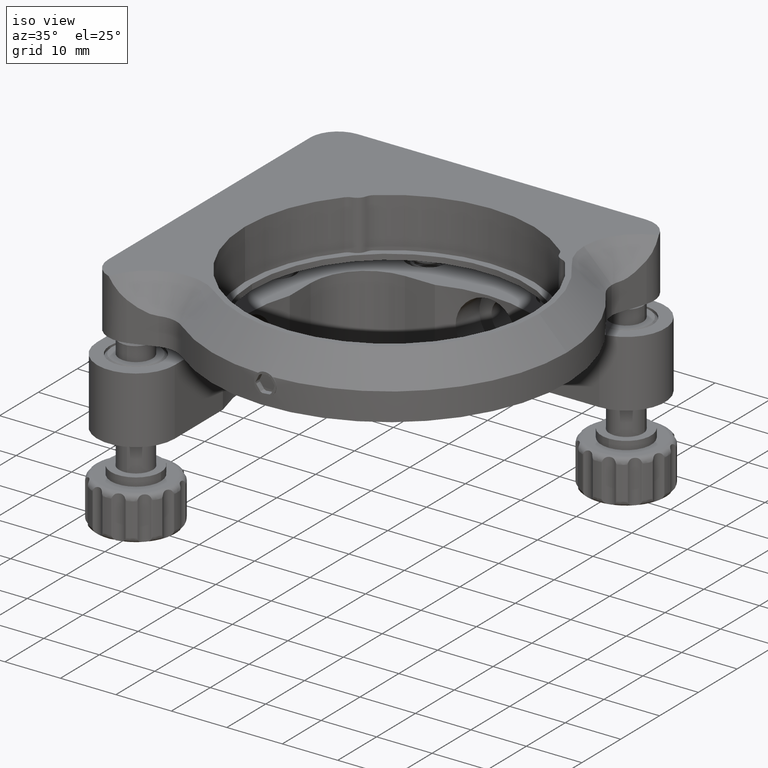
[diagram: clean part render]
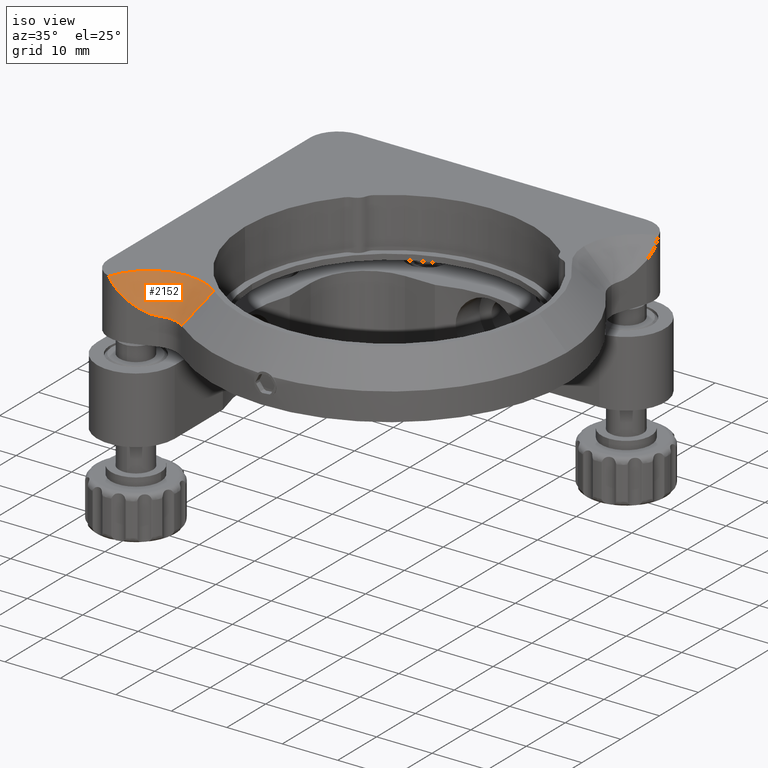
[diagram: same view with one face highlighted and labeled with its STEP entity id]
A machine part, iso view. The second image highlights one B-rep face of the part: STEP entity #2152.
In plain terms, the highlighted conical surface has half-angle 45 deg.
Its self-contained STEP definition (entity closure, byte-faithful):
#636 = CARTESIAN_POINT ( 'NONE',  ( 7.886025639627610495, -59.89193986682194293, 4.999999999999990230 ) ) ;
#926 = EDGE_CURVE ( 'NONE', #32137, #6437, #18439, .T. ) ;
#1435 = VERTEX_POINT ( 'NONE', #11555 ) ;
#1899 = DIRECTION ( 'NONE',  ( -1.000000000000000000, -1.387778780781444689E-15, 1.734723475976805862E-16 ) ) ;
#1918 = CARTESIAN_POINT ( 'NONE',  ( 1.033802242430160057, -56.90088579660176293, 7.475194874146655621 ) ) ;
#2152 = ADVANCED_FACE ( 'NONE', ( #3892 ), #16226, .F. ) ;
#2287 = CARTESIAN_POINT ( 'NONE',  ( 4.596182747521622147, -55.72578785341517005, 5.304773322691723081 ) ) ;
#2783 = EDGE_CURVE ( 'NONE', #6437, #24167, #20857, .T. ) ;
#3295 = CARTESIAN_POINT ( 'NONE',  ( 3.412689686452225590, -56.12564660272109052, 5.836463065857626198 ) ) ;
#3544 = CARTESIAN_POINT ( 'NONE',  ( 11.00953568832658114, -55.98762366860277240, 5.000000000000008882 ) ) ;
#3584 = CARTESIAN_POINT ( 'NONE',  ( 14.13304573702555089, -52.08330747038358766, 10.00000000000000533 ) ) ;
#3892 = FACE_OUTER_BOUND ( 'NONE', #18930, .T. ) ;
#3954 = AXIS2_PLACEMENT_3D ( 'NONE', #636, #12836, #1899 ) ;
#4111 = DIRECTION ( 'NONE',  ( -1.000000000000000000, -6.938893903907217531E-16, 1.734723475976804383E-16 ) ) ;
#4250 = CARTESIAN_POINT ( 'NONE',  ( 7.886025639627610495, -59.89193986682194293, 4.999999999999991118 ) ) ;
#5012 = ORIENTED_EDGE ( 'NONE', *, *, #31501, .F. ) ;
#5852 = CARTESIAN_POINT ( 'NONE',  ( 5.426852551836481631, -55.44513509763186931, 5.063787605655678092 ) ) ;
#6437 = VERTEX_POINT ( 'NONE', #21384 ) ;
#6650 = CARTESIAN_POINT ( 'NONE',  ( 1.312957413941941098, -56.83506886127203472, 7.245905096986090754 ) ) ;
#7374 = DIRECTION ( 'NONE',  ( 1.772866405933790834E-16, 8.922568092179399976E-17, -1.000000000000000000 ) ) ;
#7906 = CARTESIAN_POINT ( 'NONE',  ( 4.191877607223854163, -55.86238768070212757, 5.463035022545933650 ) ) ;
#8202 = EDGE_CURVE ( 'NONE', #1435, #32137, #17869, .T. ) ;
#8558 = CARTESIAN_POINT ( 'NONE',  ( 4.803084303807525046, -55.65588343213264721, 5.234862595525001439 ) ) ;
#8733 = VECTOR ( 'NONE', #23555, 1000.000000000000114 ) ;
#9929 = CARTESIAN_POINT ( 'NONE',  ( 0.2108121162944553151, -57.00376698487036720, 8.200154675296495554 ) ) ;
#10663 = CARTESIAN_POINT ( 'NONE',  ( 3.038979746246685210, -56.25190943789035458, 6.053897754134207609 ) ) ;
#11555 = CARTESIAN_POINT ( 'NONE',  ( 14.13304573702554734, -52.08330747038359476, 10.00000000000000533 ) ) ;
#12836 = DIRECTION ( 'NONE',  ( -1.772866405933790834E-16, -8.922568092179399976E-17, 1.000000000000000000 ) ) ;
#13226 = CARTESIAN_POINT ( 'NONE',  ( 1.951745298620935598, -56.61924594431405922, 6.771757543636923060 ) ) ;
#13345 = CIRCLE ( 'NONE', #30939, 10.00000000000001599 ) ;
#13408 = CARTESIAN_POINT ( 'NONE',  ( 6.285587990873471753, -55.15499999677395238, 4.999999999999986677 ) ) ;
#13657 = ORIENTED_EDGE ( 'NONE', *, *, #17100, .F. ) ;
#15414 = DIRECTION ( 'NONE',  ( -1.772866405933790834E-16, -8.922568092179399976E-17, 1.000000000000000000 ) ) ;
#15623 = CARTESIAN_POINT ( 'NONE',  ( 0.4830141292062823388, -56.98540821434005466, 7.951834639924137527 ) ) ;
#16226 = CONICAL_SURFACE ( 'NONE', #3954, 5.000000000000003553, 0.7853981633974483900 ) ;
#16811 = CARTESIAN_POINT ( 'NONE',  ( -1.603246745564619102, -56.73698985142891615, 10.00000000000000533 ) ) ;
#17100 = EDGE_CURVE ( 'NONE', #20963, #1435, #13345, .T. ) ;
#17869 = LINE ( 'NONE', #3584, #8733 ) ;
#18439 = CIRCLE ( 'NONE', #26043, 5.000000000000003553 ) ;
#18927 = CARTESIAN_POINT ( 'NONE',  ( 1.600437648754137410, -56.73793987004811612, 7.032519631729585718 ) ) ;
#18930 = EDGE_LOOP ( 'NONE', ( #26058, #25918, #35514, #13657, #5012 ) ) ;
#20857 = B_SPLINE_CURVE_WITH_KNOTS ( 'NONE', 3,
 ( #13408, #21668, #5852, #8558, #2287, #7906, #32674, #3295, #10663, #30300, #13226, #18927 ),
 .UNSPECIFIED., .F., .F.,
 ( 4, 2, 2, 2, 2, 4 ),
 ( 8.673617379884034509E-19, 0.001355948262144427742, 0.002033922393216636842, 0.002711896524288845943, 0.004067844786433271950, 0.005423793048577697958 ),
 .UNSPECIFIED. ) ;
#20963 = VERTEX_POINT ( 'NONE', #16811 ) ;
#21384 = CARTESIAN_POINT ( 'NONE',  ( 6.285587990873471753, -55.15499999677395238, 4.999999999999986677 ) ) ;
#21624 = DIRECTION ( 'NONE',  ( -1.000000000000000000, -1.387778780781444689E-15, 1.734723475976805862E-16 ) ) ;
#21668 = CARTESIAN_POINT ( 'NONE',  ( 5.850970818540396579, -55.30184114411363794, 4.999999999999992895 ) ) ;
#23555 = DIRECTION ( 'NONE',  ( -0.4417310273078717264, -0.5521536919314524727, -0.7071067811865467956 ) ) ;
#23714 = CARTESIAN_POINT ( 'NONE',  ( -1.603246745564619102, -56.73698985142891615, 10.00000000000000533 ) ) ;
#23906 = CARTESIAN_POINT ( 'NONE',  ( 7.886025639627610495, -59.89193986682194293, 10.00000000000000533 ) ) ;
#24167 = VERTEX_POINT ( 'NONE', #32630 ) ;
#25918 = ORIENTED_EDGE ( 'NONE', *, *, #926, .F. ) ;
#26043 = AXIS2_PLACEMENT_3D ( 'NONE', #4250, #15414, #21624 ) ;
#26058 = ORIENTED_EDGE ( 'NONE', *, *, #2783, .F. ) ;
#29211 = CARTESIAN_POINT ( 'NONE',  ( -0.5947850415259445800, -56.99446650809979076, 8.960349745966075474 ) ) ;
#30300 = CARTESIAN_POINT ( 'NONE',  ( 2.308454058568644385, -56.49872718226041712, 6.521441532815284603 ) ) ;
#30939 = AXIS2_PLACEMENT_3D ( 'NONE', #23906, #7374, #4111 ) ;
#31501 = EDGE_CURVE ( 'NONE', #24167, #20963, #35797, .T. ) ;
#32137 = VERTEX_POINT ( 'NONE', #3544 ) ;
#32309 = CARTESIAN_POINT ( 'NONE',  ( -1.108156595214071283, -56.90458980354266316, 9.477318523659679528 ) ) ;
#32630 = CARTESIAN_POINT ( 'NONE',  ( 1.600437648754137410, -56.73793987004811612, 7.032519631729585718 ) ) ;
#32674 = CARTESIAN_POINT ( 'NONE',  ( 3.994401168179725126, -55.92910770174071899, 5.551209796058738988 ) ) ;
#35068 = CARTESIAN_POINT ( 'NONE',  ( 1.600437648754137410, -56.73793987004811612, 7.032519631729585718 ) ) ;
#35514 = ORIENTED_EDGE ( 'NONE', *, *, #8202, .F. ) ;
#35797 = B_SPLINE_CURVE_WITH_KNOTS ( 'NONE', 3,
 ( #35068, #6650, #1918, #15623, #9929, #29211, #32309, #23714 ),
 .UNSPECIFIED., .F., .F.,
 ( 4, 2, 2, 4 ),
 ( 0.000000000000000000, 0.001099821293158235493, 0.002199642586316473154, 0.004399285172632948042 ),
 .UNSPECIFIED. ) ;